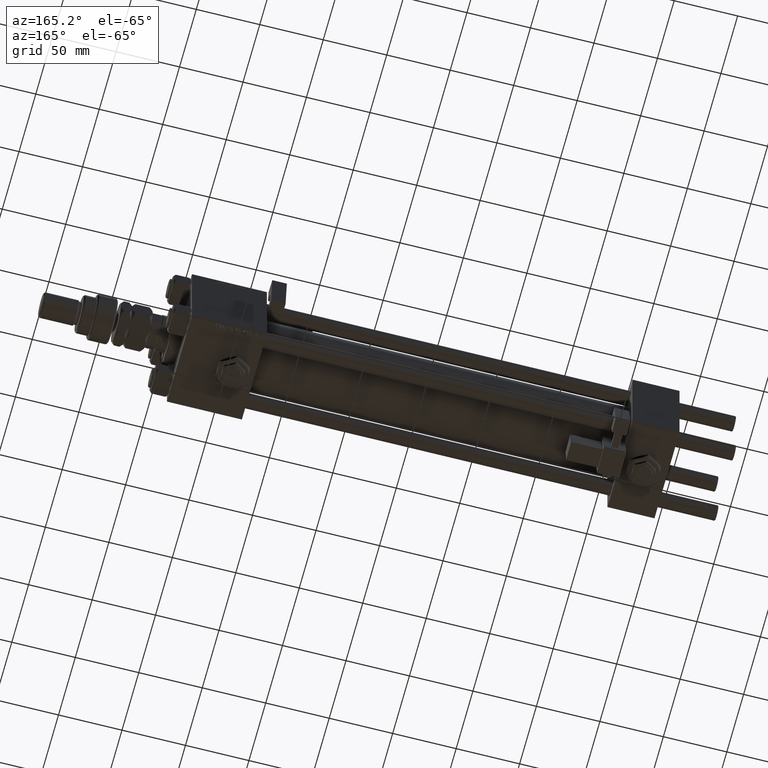
[diagram: clean part render]
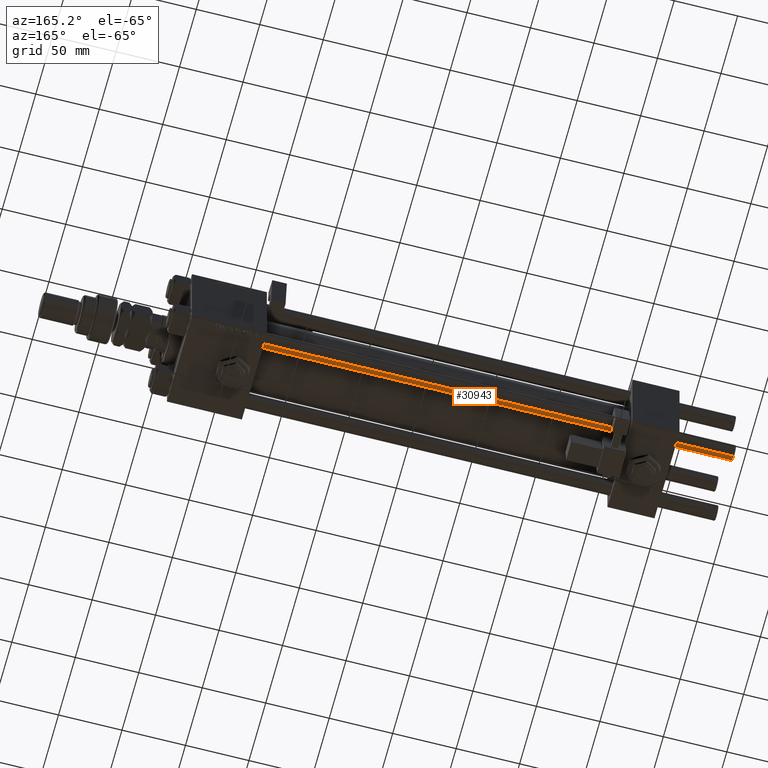
[diagram: same view with one face highlighted and labeled with its STEP entity id]
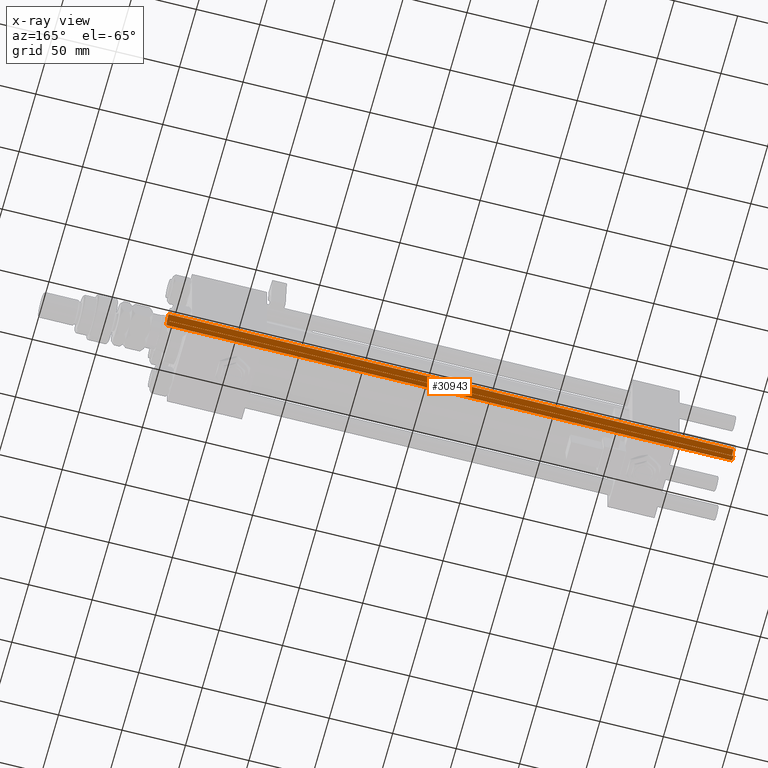
[diagram: x-ray of the same camera — body ghosted, the highlighted face saturated]
A machine part, auxiliary view. The second image highlights one B-rep face of the part: STEP entity #30943.
The next image is the same camera in x-ray: the body ghosted, the highlighted face saturated — about 0% of this face is hidden behind the body in this view.
In plain terms, the highlighted cylindrical surface (edge-blend (fillet) strip) has radius 6 mm, axis along (1, 0, -0).
Its self-contained STEP definition (entity closure, byte-faithful):
#997 = CARTESIAN_POINT ( 'NONE',  ( 0.000000000000000000, 0.000000000000000000, 0.5000000000003890221 ) ) ;
#1268 = DIRECTION ( 'NONE',  ( -0.000000000000000000, -0.000000000000000000, 1.000000000000000000 ) ) ;
#1927 = DIRECTION ( 'NONE',  ( 1.000000000000000000, 0.000000000000000000, 0.000000000000000000 ) ) ;
#5961 = AXIS2_PLACEMENT_3D ( 'NONE', #22858, #49276, #36339 ) ;
#6378 = CARTESIAN_POINT ( 'NONE',  ( 6.000000000000000888, 7.347880794884119736E-16, 0.5000000000003890221 ) ) ;
#7597 = EDGE_CURVE ( 'NONE', #27160, #55242, #42167, .T. ) ;
#8941 = VECTOR ( 'NONE', #24085, 1000.000000000000000 ) ;
#9337 = CARTESIAN_POINT ( 'NONE',  ( -6.000000000000000888, 0.000000000000000000, 446.0000000000000000 ) ) ;
#11109 = CARTESIAN_POINT ( 'NONE',  ( 0.000000000000000000, 0.000000000000000000, 445.5000000000003411 ) ) ;
#14531 = FACE_OUTER_BOUND ( 'NONE', #56574, .T. ) ;
#15211 = VECTOR ( 'NONE', #53008, 1000.000000000000000 ) ;
#16282 = DIRECTION ( 'NONE',  ( 0.000000000000000000, 0.000000000000000000, -1.000000000000000000 ) ) ;
#18338 = VERTEX_POINT ( 'NONE', #32266 ) ;
#20362 = EDGE_CURVE ( 'NONE', #18338, #55242, #26779, .T. ) ;
#20593 = AXIS2_PLACEMENT_3D ( 'NONE', #11109, #16282, #1927 ) ;
#21979 = DIRECTION ( 'NONE',  ( 1.000000000000000000, 0.000000000000000000, 0.000000000000000000 ) ) ;
#22858 = CARTESIAN_POINT ( 'NONE',  ( 0.000000000000000000, 0.000000000000000000, 446.0000000000000000 ) ) ;
#24085 = DIRECTION ( 'NONE',  ( -0.000000000000000000, -0.000000000000000000, -1.000000000000000000 ) ) ;
#26138 = CARTESIAN_POINT ( 'NONE',  ( 6.000000000000000888, 7.347880794884119736E-16, 445.5000000000003411 ) ) ;
#26779 = CIRCLE ( 'NONE', #39608, 6.000000000000000888 ) ;
#27160 = VERTEX_POINT ( 'NONE', #26138 ) ;
#30047 = EDGE_CURVE ( 'NONE', #27160, #43148, #55462, .T. ) ;
#30943 = ADVANCED_FACE ( 'NONE', ( #14531 ), #31180, .T. ) ;
#31180 = CYLINDRICAL_SURFACE ( 'NONE', #5961, 6.000000000000000888 ) ;
#32266 = CARTESIAN_POINT ( 'NONE',  ( -6.000000000000000888, 0.000000000000000000, 0.5000000000003890221 ) ) ;
#36339 = DIRECTION ( 'NONE',  ( -1.000000000000000000, 0.000000000000000000, 0.000000000000000000 ) ) ;
#39608 = AXIS2_PLACEMENT_3D ( 'NONE', #997, #1268, #21979 ) ;
#39688 = ORIENTED_EDGE ( 'NONE', *, *, #30047, .T. ) ;
#42167 = LINE ( 'NONE', #55104, #8941 ) ;
#43148 = VERTEX_POINT ( 'NONE', #46894 ) ;
#46894 = CARTESIAN_POINT ( 'NONE',  ( -6.000000000000000888, 0.000000000000000000, 445.5000000000003411 ) ) ;
#47846 = LINE ( 'NONE', #9337, #15211 ) ;
#48254 = ORIENTED_EDGE ( 'NONE', *, *, #7597, .F. ) ;
#48434 = ORIENTED_EDGE ( 'NONE', *, *, #48766, .T. ) ;
#48766 = EDGE_CURVE ( 'NONE', #43148, #18338, #47846, .T. ) ;
#49276 = DIRECTION ( 'NONE',  ( -0.000000000000000000, -0.000000000000000000, -1.000000000000000000 ) ) ;
#53008 = DIRECTION ( 'NONE',  ( -0.000000000000000000, -0.000000000000000000, -1.000000000000000000 ) ) ;
#53588 = ORIENTED_EDGE ( 'NONE', *, *, #20362, .T. ) ;
#55104 = CARTESIAN_POINT ( 'NONE',  ( 6.000000000000000888, 7.347880794884119736E-16, 446.0000000000000000 ) ) ;
#55242 = VERTEX_POINT ( 'NONE', #6378 ) ;
#55462 = CIRCLE ( 'NONE', #20593, 6.000000000000000888 ) ;
#56574 = EDGE_LOOP ( 'NONE', ( #48254, #39688, #48434, #53588 ) ) ;